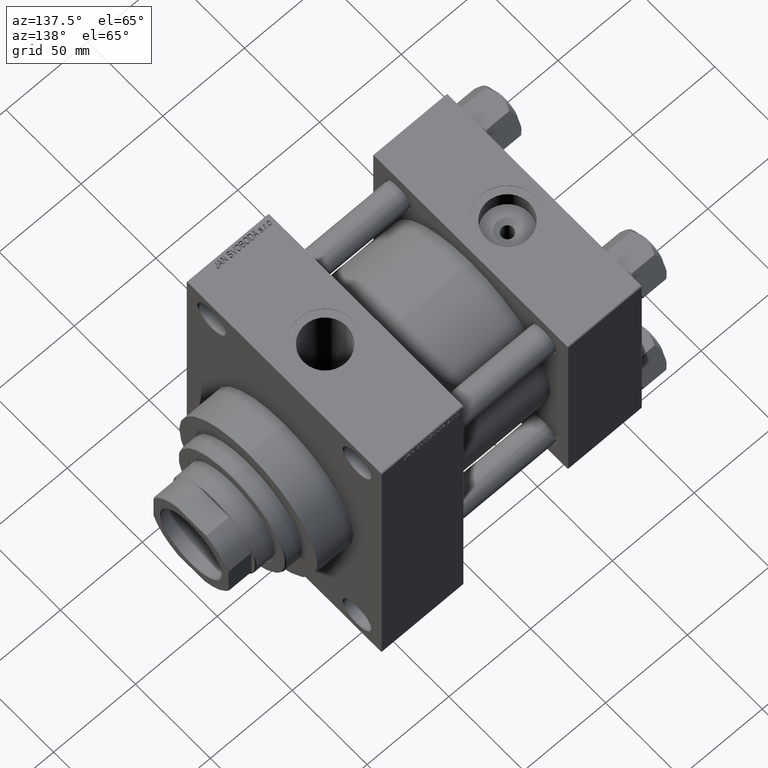
[diagram: clean part render]
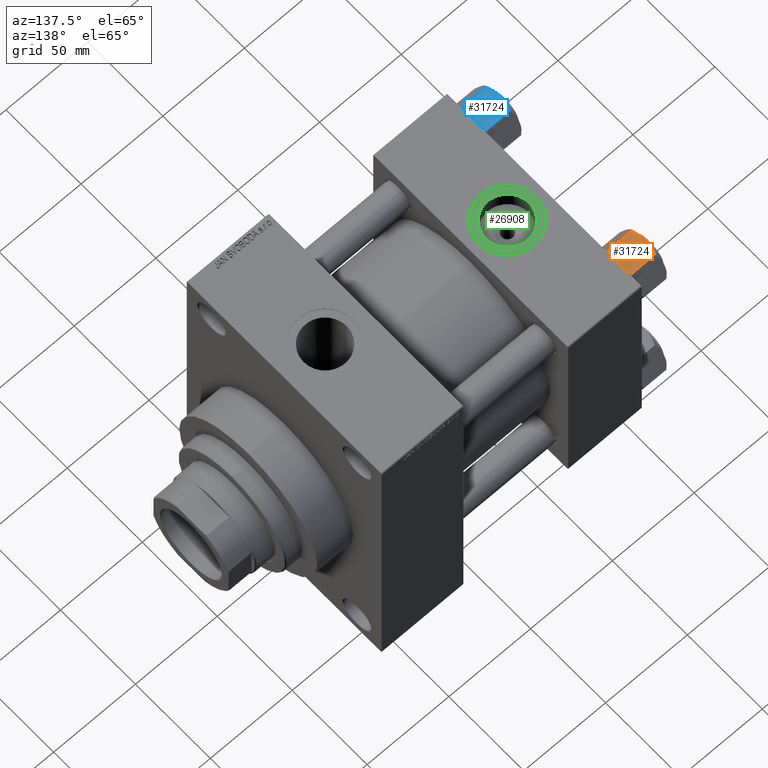
[diagram: same view with three faces highlighted in distinct colors, each labeled with its STEP entity id]
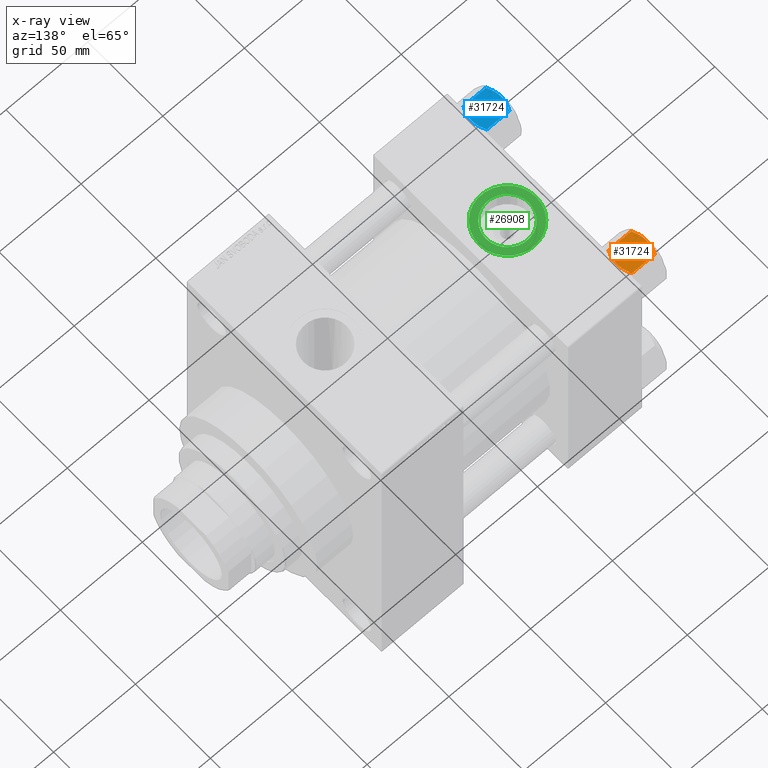
[diagram: x-ray of the same camera — body ghosted, the three highlighted faces saturated]
A machine part, auxiliary view with three faces highlighted in distinct colors.
The next image is the same camera in x-ray (body ghosted, the three faces saturated) — at least one of them is partly hidden behind the body in this view.
Their STEP definitions:

[orange] entity #31724 — the highlighted planar face has unit normal (0, -0, -1).
#64 = CARTESIAN_POINT ( 'NONE',  ( 6.427364677720476926, -13.52731680711293549, -16.56149306284486755 ) ) ;
#873 = VERTEX_POINT ( 'NONE', #10296 ) ;
#932 = CARTESIAN_POINT ( 'NONE',  ( 1.333889873825135686, -13.52731680711293549, -0.06156641003439144999 ) ) ;
#1480 = CARTESIAN_POINT ( 'NONE',  ( -0.6693083573771178019, -13.52731680711293727, -17.98750666918892449 ) ) ;
#1719 = CARTESIAN_POINT ( 'NONE',  ( -5.184073258379402027, -13.52731680711293905, -17.05185620934992130 ) ) ;
#1997 = CARTESIAN_POINT ( 'NONE',  ( 7.810000000000002274, -13.52731680711293372, -1.999999999999998224 ) ) ;
#4794 = CARTESIAN_POINT ( 'NONE',  ( 6.422751913021828685, -13.52731680711293549, -1.436509110925896948 ) ) ;
#4865 = CARTESIAN_POINT ( 'NONE',  ( -0.3330234424833808937, -13.52731680711293372, -18.00000000000000711 ) ) ;
#5498 = EDGE_CURVE ( 'NONE', #26891, #12865, #43399, .T. ) ;
#5553 = EDGE_CURVE ( 'NONE', #40498, #26159, #18893, .T. ) ;
#6248 = PLANE ( 'NONE',  #46167 ) ;
#6482 = CARTESIAN_POINT ( 'NONE',  ( 7.810000000000002274, -13.52731680711293372, -18.00000000000000000 ) ) ;
#6838 = CARTESIAN_POINT ( 'NONE',  ( 2.638177715023113379, -13.52731680711293549, -17.79984593233011481 ) ) ;
#7931 = CARTESIAN_POINT ( 'NONE',  ( 0.3330234424833860007, -13.52731680711293727, 1.736982230502816853E-15 ) ) ;
#8139 = CARTESIAN_POINT ( 'NONE',  ( -4.553769687922305742, -13.52731680711294082, -0.7327291995145158721 ) ) ;
#8412 = CARTESIAN_POINT ( 'NONE',  ( 2.644243758052992277, -13.52731680711293372, -0.2408281198023969893 ) ) ;
#8459 = ORIENTED_EDGE ( 'NONE', *, *, #39034, .F. ) ;
#9034 = DIRECTION ( 'NONE',  ( 1.000000000000000000, 2.221156819432531199E-16, -0.000000000000000000 ) ) ;
#9194 = CARTESIAN_POINT ( 'NONE',  ( 7.810000000000002274, -13.52731680711293372, -16.00000000000000000 ) ) ;
#9923 = VECTOR ( 'NONE', #39879, 1000.000000000000000 ) ;
#10296 = CARTESIAN_POINT ( 'NONE',  ( -7.622943475354647447, -13.52731680711293727, -2.000000000000000000 ) ) ;
#11239 = VERTEX_POINT ( 'NONE', #25371 ) ;
#11398 = CARTESIAN_POINT ( 'NONE',  ( 1.335584685993418619, -13.52731680711293372, -18.00000000000000355 ) ) ;
#12606 = B_SPLINE_CURVE_WITH_KNOTS ( 'NONE', 3,
 ( #15898, #7931, #19295, #932, #41508, #8412, #23393, #38136, #23156, #4794, #22673, #19533 ),
 .UNSPECIFIED., .F., .F.,
 ( 4, 2, 2, 2, 2, 4 ),
 ( 0.02774433486126546416, 0.02873404020403550266, 0.02972374554680554115, 0.03170315623234561814, 0.03368256691788569512, 0.03566197760342577211 ),
 .UNSPECIFIED. ) ;
#12703 = ORIENTED_EDGE ( 'NONE', *, *, #30930, .F. ) ;
#12865 = VERTEX_POINT ( 'NONE', #30211 ) ;
#12898 = LINE ( 'NONE', #39664, #23152 ) ;
#13080 = VERTEX_POINT ( 'NONE', #41024 ) ;
#13325 = ORIENTED_EDGE ( 'NONE', *, *, #24554, .T. ) ;
#13343 = B_SPLINE_CURVE_WITH_KNOTS ( 'NONE', 3,
 ( #41243, #15636, #19021, #18780, #8139, #37629, #34476, #34007 ),
 .UNSPECIFIED., .F., .F.,
 ( 4, 2, 2, 4 ),
 ( 0.01980594295952729095, 0.02179054093496183425, 0.02377513891039637756, 0.02774433486126546416 ),
 .UNSPECIFIED. ) ;
#15636 = CARTESIAN_POINT ( 'NONE',  ( -7.030888348548060662, -13.52731680711294082, -1.709337883550297699 ) ) ;
#15784 = EDGE_CURVE ( 'NONE', #11239, #25012, #47099, .T. ) ;
#15844 = CARTESIAN_POINT ( 'NONE',  ( 7.810000000000002274, -13.52731680711293372, -18.00000000000000000 ) ) ;
#15898 = CARTESIAN_POINT ( 'NONE',  ( 3.004629197474319246E-15, -13.52731680711293727, 0.000000000000000000 ) ) ;
#17785 = ORIENTED_EDGE ( 'NONE', *, *, #40246, .F. ) ;
#18780 = CARTESIAN_POINT ( 'NONE',  ( -5.189513245496330640, -13.52731680711293905, -0.9501108431732574466 ) ) ;
#18893 = LINE ( 'NONE', #19614, #28212 ) ;
#19021 = CARTESIAN_POINT ( 'NONE',  ( -6.427364677720470709, -13.52731680711293727, -1.438506937155139109 ) ) ;
#19163 = EDGE_CURVE ( 'NONE', #26159, #873, #27403, .T. ) ;
#19295 = CARTESIAN_POINT ( 'NONE',  ( 0.6693083573771232420, -13.52731680711293372, -0.01249333081107902900 ) ) ;
#19307 = VECTOR ( 'NONE', #9034, 1000.000000000000000 ) ;
#19459 = ORIENTED_EDGE ( 'NONE', *, *, #5498, .F. ) ;
#19533 = CARTESIAN_POINT ( 'NONE',  ( 7.622943475354652776, -13.52731680711293372, -2.000000000000000000 ) ) ;
#19603 = CARTESIAN_POINT ( 'NONE',  ( -7.030203932307581560, -13.52731680711293727, -16.29099812210860065 ) ) ;
#19614 = CARTESIAN_POINT ( 'NONE',  ( -7.809999999999999609, -13.52731680711293727, -18.00000000000000000 ) ) ;
#19752 = VECTOR ( 'NONE', #34452, 1000.000000000000000 ) ;
#19812 = ORIENTED_EDGE ( 'NONE', *, *, #31219, .F. ) ;
#20262 = DIRECTION ( 'NONE',  ( -1.000000000000000000, -2.221156819432531199E-16, 0.000000000000000000 ) ) ;
#20552 = CARTESIAN_POINT ( 'NONE',  ( 7.810000000000002274, -13.52731680711293372, -1.999999999999998224 ) ) ;
#21209 = DIRECTION ( 'NONE',  ( -2.221156819432531199E-16, 1.000000000000000000, 0.000000000000000000 ) ) ;
#21663 = ORIENTED_EDGE ( 'NONE', *, *, #21933, .F. ) ;
#21818 = CARTESIAN_POINT ( 'NONE',  ( 5.189513245496335969, -13.52731680711293194, -17.04988915682674033 ) ) ;
#21933 = EDGE_CURVE ( 'NONE', #36408, #11239, #12606, .T. ) ;
#22673 = CARTESIAN_POINT ( 'NONE',  ( 7.030203932307590442, -13.52731680711293727, -1.709001877891394017 ) ) ;
#22988 = CARTESIAN_POINT ( 'NONE',  ( -4.557734399832409800, -13.52731680711293905, -17.26585298258849122 ) ) ;
#22998 = DIRECTION ( 'NONE',  ( -0.000000000000000000, -0.000000000000000000, 1.000000000000000000 ) ) ;
#23152 = VECTOR ( 'NONE', #42373, 1000.000000000000000 ) ;
#23156 = CARTESIAN_POINT ( 'NONE',  ( 5.184073258379408244, -13.52731680711293372, -0.9481437906500832513 ) ) ;
#23393 = CARTESIAN_POINT ( 'NONE',  ( 3.287826776903156833, -13.52731680711293194, -0.3804584453753362960 ) ) ;
#23466 = CARTESIAN_POINT ( 'NONE',  ( -6.422751913021825132, -13.52731680711293905, -16.56349088907410305 ) ) ;
#23687 = ORIENTED_EDGE ( 'NONE', *, *, #19163, .F. ) ;
#23942 = DIRECTION ( 'NONE',  ( -1.000000000000000000, -2.221156819432531199E-16, 0.000000000000000000 ) ) ;
#24554 = EDGE_CURVE ( 'NONE', #27934, #25012, #41699, .T. ) ;
#24905 = ORIENTED_EDGE ( 'NONE', *, *, #15784, .F. ) ;
#25012 = VERTEX_POINT ( 'NONE', #1997 ) ;
#25213 = CARTESIAN_POINT ( 'NONE',  ( 4.553769687922309295, -13.52731680711293194, -17.26727080048548046 ) ) ;
#25371 = CARTESIAN_POINT ( 'NONE',  ( 7.622943475354652776, -13.52731680711293372, -2.000000000000000000 ) ) ;
#26159 = VERTEX_POINT ( 'NONE', #37070 ) ;
#26634 = CARTESIAN_POINT ( 'NONE',  ( 7.810000000000002274, -13.52731680711293372, -16.00000000000000000 ) ) ;
#26891 = VERTEX_POINT ( 'NONE', #32518 ) ;
#27176 = CARTESIAN_POINT ( 'NONE',  ( 7.810000000000002274, -13.52731680711293372, -1.999999999999998224 ) ) ;
#27403 = LINE ( 'NONE', #27176, #19307 ) ;
#27934 = VERTEX_POINT ( 'NONE', #26634 ) ;
#28212 = VECTOR ( 'NONE', #22998, 1000.000000000000000 ) ;
#28836 = CARTESIAN_POINT ( 'NONE',  ( 7.622943475354652776, -13.52731680711293372, -16.00000000000000000 ) ) ;
#30211 = CARTESIAN_POINT ( 'NONE',  ( 3.004629197474319246E-15, -13.52731680711293727, -18.00000000000000000 ) ) ;
#30725 = B_SPLINE_CURVE_WITH_KNOTS ( 'NONE', 3,
 ( #41824, #4865, #1480, #41585, #37732, #37973, #45430, #22988, #1719, #23466, #19603, #30968 ),
 .UNSPECIFIED., .F., .F.,
 ( 4, 2, 2, 2, 2, 4 ),
 ( 0.02774433486126545376, 0.02873404020403549225, 0.02972374554680553074, 0.03170315623234560426, 0.03368256691788568125, 0.03566197760342575823 ),
 .UNSPECIFIED. ) ;
#30930 = EDGE_CURVE ( 'NONE', #13080, #40498, #42286, .T. ) ;
#30968 = CARTESIAN_POINT ( 'NONE',  ( -7.622943475354647447, -13.52731680711293727, -16.00000000000000000 ) ) ;
#31219 = EDGE_CURVE ( 'NONE', #12865, #13080, #30725, .T. ) ;
#31724 = ADVANCED_FACE ( 'NONE', ( #39347 ), #6248, .F. ) ;
#32518 = CARTESIAN_POINT ( 'NONE',  ( 7.622943475354652776, -13.52731680711293372, -16.00000000000000000 ) ) ;
#34007 = CARTESIAN_POINT ( 'NONE',  ( 3.004629197474319246E-15, -13.52731680711293727, 0.000000000000000000 ) ) ;
#34452 = DIRECTION ( 'NONE',  ( -0.000000000000000000, -0.000000000000000000, 1.000000000000000000 ) ) ;
#34476 = CARTESIAN_POINT ( 'NONE',  ( -1.335584685993413956, -13.52731680711294082, 1.666960840196463265E-15 ) ) ;
#36408 = VERTEX_POINT ( 'NONE', #45493 ) ;
#37070 = CARTESIAN_POINT ( 'NONE',  ( -7.809999999999999609, -13.52731680711293727, -1.999999999999998224 ) ) ;
#37629 = CARTESIAN_POINT ( 'NONE',  ( -2.638177715023105385, -13.52731680711294082, -0.2001540676698838062 ) ) ;
#37732 = CARTESIAN_POINT ( 'NONE',  ( -1.663410456966171180, -13.52731680711293549, -17.90195050864300796 ) ) ;
#37973 = CARTESIAN_POINT ( 'NONE',  ( -2.644243758052987836, -13.52731680711293549, -17.75917188019760218 ) ) ;
#38136 = CARTESIAN_POINT ( 'NONE',  ( 4.557734399832416905, -13.52731680711293016, -0.7341470174115138914 ) ) ;
#38441 = VECTOR ( 'NONE', #23942, 1000.000000000000000 ) ;
#38801 = ORIENTED_EDGE ( 'NONE', *, *, #5553, .F. ) ;
#39034 = EDGE_CURVE ( 'NONE', #27934, #26891, #12898, .T. ) ;
#39347 = FACE_OUTER_BOUND ( 'NONE', #39737, .T. ) ;
#39664 = CARTESIAN_POINT ( 'NONE',  ( 7.810000000000002274, -13.52731680711293372, -16.00000000000000000 ) ) ;
#39737 = EDGE_LOOP ( 'NONE', ( #8459, #13325, #24905, #21663, #17785, #23687, #38801, #12703, #19812, #19459 ) ) ;
#39879 = DIRECTION ( 'NONE',  ( 1.000000000000000000, 2.221156819432531199E-16, -0.000000000000000000 ) ) ;
#39945 = CARTESIAN_POINT ( 'NONE',  ( 3.004629197474319246E-15, -13.52731680711293727, -18.00000000000000000 ) ) ;
#40246 = EDGE_CURVE ( 'NONE', #873, #36408, #13343, .T. ) ;
#40498 = VERTEX_POINT ( 'NONE', #43841 ) ;
#41024 = CARTESIAN_POINT ( 'NONE',  ( -7.622943475354647447, -13.52731680711293727, -16.00000000000000000 ) ) ;
#41243 = CARTESIAN_POINT ( 'NONE',  ( -7.622943475354647447, -13.52731680711293727, -2.000000000000000000 ) ) ;
#41508 = CARTESIAN_POINT ( 'NONE',  ( 1.663410456966175843, -13.52731680711293372, -0.09804949135698878826 ) ) ;
#41585 = CARTESIAN_POINT ( 'NONE',  ( -1.333889873825130579, -13.52731680711293549, -17.93843358996560866 ) ) ;
#41699 = LINE ( 'NONE', #15844, #19752 ) ;
#41824 = CARTESIAN_POINT ( 'NONE',  ( 3.004629197474319246E-15, -13.52731680711293727, -18.00000000000000000 ) ) ;
#42286 = LINE ( 'NONE', #9194, #38441 ) ;
#42373 = DIRECTION ( 'NONE',  ( -1.000000000000000000, -2.221156819432531199E-16, 0.000000000000000000 ) ) ;
#43399 = B_SPLINE_CURVE_WITH_KNOTS ( 'NONE', 3,
 ( #28836, #44488, #64, #21818, #25213, #6838, #11398, #39945 ),
 .UNSPECIFIED., .F., .F.,
 ( 4, 2, 2, 4 ),
 ( 0.01980594295952729095, 0.02179054093496183078, 0.02377513891039637062, 0.02774433486126545376 ),
 .UNSPECIFIED. ) ;
#43841 = CARTESIAN_POINT ( 'NONE',  ( -7.809999999999999609, -13.52731680711293727, -16.00000000000000000 ) ) ;
#44488 = CARTESIAN_POINT ( 'NONE',  ( 7.030888348548065103, -13.52731680711293194, -16.29066211644969897 ) ) ;
#45430 = CARTESIAN_POINT ( 'NONE',  ( -3.287826776903149728, -13.52731680711293727, -17.61954155462466076 ) ) ;
#45493 = CARTESIAN_POINT ( 'NONE',  ( 3.004629197474319246E-15, -13.52731680711293727, 0.000000000000000000 ) ) ;
#46167 = AXIS2_PLACEMENT_3D ( 'NONE', #6482, #21209, #20262 ) ;
#47099 = LINE ( 'NONE', #20552, #9923 ) ;

[blue] entity #31724 — the highlighted planar face has unit normal (0, -0, -1).
#64 = CARTESIAN_POINT ( 'NONE',  ( 6.427364677720476926, -13.52731680711293549, -16.56149306284486755 ) ) ;
#873 = VERTEX_POINT ( 'NONE', #10296 ) ;
#932 = CARTESIAN_POINT ( 'NONE',  ( 1.333889873825135686, -13.52731680711293549, -0.06156641003439144999 ) ) ;
#1480 = CARTESIAN_POINT ( 'NONE',  ( -0.6693083573771178019, -13.52731680711293727, -17.98750666918892449 ) ) ;
#1719 = CARTESIAN_POINT ( 'NONE',  ( -5.184073258379402027, -13.52731680711293905, -17.05185620934992130 ) ) ;
#1997 = CARTESIAN_POINT ( 'NONE',  ( 7.810000000000002274, -13.52731680711293372, -1.999999999999998224 ) ) ;
#4794 = CARTESIAN_POINT ( 'NONE',  ( 6.422751913021828685, -13.52731680711293549, -1.436509110925896948 ) ) ;
#4865 = CARTESIAN_POINT ( 'NONE',  ( -0.3330234424833808937, -13.52731680711293372, -18.00000000000000711 ) ) ;
#5498 = EDGE_CURVE ( 'NONE', #26891, #12865, #43399, .T. ) ;
#5553 = EDGE_CURVE ( 'NONE', #40498, #26159, #18893, .T. ) ;
#6248 = PLANE ( 'NONE',  #46167 ) ;
#6482 = CARTESIAN_POINT ( 'NONE',  ( 7.810000000000002274, -13.52731680711293372, -18.00000000000000000 ) ) ;
#6838 = CARTESIAN_POINT ( 'NONE',  ( 2.638177715023113379, -13.52731680711293549, -17.79984593233011481 ) ) ;
#7931 = CARTESIAN_POINT ( 'NONE',  ( 0.3330234424833860007, -13.52731680711293727, 1.736982230502816853E-15 ) ) ;
#8139 = CARTESIAN_POINT ( 'NONE',  ( -4.553769687922305742, -13.52731680711294082, -0.7327291995145158721 ) ) ;
#8412 = CARTESIAN_POINT ( 'NONE',  ( 2.644243758052992277, -13.52731680711293372, -0.2408281198023969893 ) ) ;
#8459 = ORIENTED_EDGE ( 'NONE', *, *, #39034, .F. ) ;
#9034 = DIRECTION ( 'NONE',  ( 1.000000000000000000, 2.221156819432531199E-16, -0.000000000000000000 ) ) ;
#9194 = CARTESIAN_POINT ( 'NONE',  ( 7.810000000000002274, -13.52731680711293372, -16.00000000000000000 ) ) ;
#9923 = VECTOR ( 'NONE', #39879, 1000.000000000000000 ) ;
#10296 = CARTESIAN_POINT ( 'NONE',  ( -7.622943475354647447, -13.52731680711293727, -2.000000000000000000 ) ) ;
#11239 = VERTEX_POINT ( 'NONE', #25371 ) ;
#11398 = CARTESIAN_POINT ( 'NONE',  ( 1.335584685993418619, -13.52731680711293372, -18.00000000000000355 ) ) ;
#12606 = B_SPLINE_CURVE_WITH_KNOTS ( 'NONE', 3,
 ( #15898, #7931, #19295, #932, #41508, #8412, #23393, #38136, #23156, #4794, #22673, #19533 ),
 .UNSPECIFIED., .F., .F.,
 ( 4, 2, 2, 2, 2, 4 ),
 ( 0.02774433486126546416, 0.02873404020403550266, 0.02972374554680554115, 0.03170315623234561814, 0.03368256691788569512, 0.03566197760342577211 ),
 .UNSPECIFIED. ) ;
#12703 = ORIENTED_EDGE ( 'NONE', *, *, #30930, .F. ) ;
#12865 = VERTEX_POINT ( 'NONE', #30211 ) ;
#12898 = LINE ( 'NONE', #39664, #23152 ) ;
#13080 = VERTEX_POINT ( 'NONE', #41024 ) ;
#13325 = ORIENTED_EDGE ( 'NONE', *, *, #24554, .T. ) ;
#13343 = B_SPLINE_CURVE_WITH_KNOTS ( 'NONE', 3,
 ( #41243, #15636, #19021, #18780, #8139, #37629, #34476, #34007 ),
 .UNSPECIFIED., .F., .F.,
 ( 4, 2, 2, 4 ),
 ( 0.01980594295952729095, 0.02179054093496183425, 0.02377513891039637756, 0.02774433486126546416 ),
 .UNSPECIFIED. ) ;
#15636 = CARTESIAN_POINT ( 'NONE',  ( -7.030888348548060662, -13.52731680711294082, -1.709337883550297699 ) ) ;
#15784 = EDGE_CURVE ( 'NONE', #11239, #25012, #47099, .T. ) ;
#15844 = CARTESIAN_POINT ( 'NONE',  ( 7.810000000000002274, -13.52731680711293372, -18.00000000000000000 ) ) ;
#15898 = CARTESIAN_POINT ( 'NONE',  ( 3.004629197474319246E-15, -13.52731680711293727, 0.000000000000000000 ) ) ;
#17785 = ORIENTED_EDGE ( 'NONE', *, *, #40246, .F. ) ;
#18780 = CARTESIAN_POINT ( 'NONE',  ( -5.189513245496330640, -13.52731680711293905, -0.9501108431732574466 ) ) ;
#18893 = LINE ( 'NONE', #19614, #28212 ) ;
#19021 = CARTESIAN_POINT ( 'NONE',  ( -6.427364677720470709, -13.52731680711293727, -1.438506937155139109 ) ) ;
#19163 = EDGE_CURVE ( 'NONE', #26159, #873, #27403, .T. ) ;
#19295 = CARTESIAN_POINT ( 'NONE',  ( 0.6693083573771232420, -13.52731680711293372, -0.01249333081107902900 ) ) ;
#19307 = VECTOR ( 'NONE', #9034, 1000.000000000000000 ) ;
#19459 = ORIENTED_EDGE ( 'NONE', *, *, #5498, .F. ) ;
#19533 = CARTESIAN_POINT ( 'NONE',  ( 7.622943475354652776, -13.52731680711293372, -2.000000000000000000 ) ) ;
#19603 = CARTESIAN_POINT ( 'NONE',  ( -7.030203932307581560, -13.52731680711293727, -16.29099812210860065 ) ) ;
#19614 = CARTESIAN_POINT ( 'NONE',  ( -7.809999999999999609, -13.52731680711293727, -18.00000000000000000 ) ) ;
#19752 = VECTOR ( 'NONE', #34452, 1000.000000000000000 ) ;
#19812 = ORIENTED_EDGE ( 'NONE', *, *, #31219, .F. ) ;
#20262 = DIRECTION ( 'NONE',  ( -1.000000000000000000, -2.221156819432531199E-16, 0.000000000000000000 ) ) ;
#20552 = CARTESIAN_POINT ( 'NONE',  ( 7.810000000000002274, -13.52731680711293372, -1.999999999999998224 ) ) ;
#21209 = DIRECTION ( 'NONE',  ( -2.221156819432531199E-16, 1.000000000000000000, 0.000000000000000000 ) ) ;
#21663 = ORIENTED_EDGE ( 'NONE', *, *, #21933, .F. ) ;
#21818 = CARTESIAN_POINT ( 'NONE',  ( 5.189513245496335969, -13.52731680711293194, -17.04988915682674033 ) ) ;
#21933 = EDGE_CURVE ( 'NONE', #36408, #11239, #12606, .T. ) ;
#22673 = CARTESIAN_POINT ( 'NONE',  ( 7.030203932307590442, -13.52731680711293727, -1.709001877891394017 ) ) ;
#22988 = CARTESIAN_POINT ( 'NONE',  ( -4.557734399832409800, -13.52731680711293905, -17.26585298258849122 ) ) ;
#22998 = DIRECTION ( 'NONE',  ( -0.000000000000000000, -0.000000000000000000, 1.000000000000000000 ) ) ;
#23152 = VECTOR ( 'NONE', #42373, 1000.000000000000000 ) ;
#23156 = CARTESIAN_POINT ( 'NONE',  ( 5.184073258379408244, -13.52731680711293372, -0.9481437906500832513 ) ) ;
#23393 = CARTESIAN_POINT ( 'NONE',  ( 3.287826776903156833, -13.52731680711293194, -0.3804584453753362960 ) ) ;
#23466 = CARTESIAN_POINT ( 'NONE',  ( -6.422751913021825132, -13.52731680711293905, -16.56349088907410305 ) ) ;
#23687 = ORIENTED_EDGE ( 'NONE', *, *, #19163, .F. ) ;
#23942 = DIRECTION ( 'NONE',  ( -1.000000000000000000, -2.221156819432531199E-16, 0.000000000000000000 ) ) ;
#24554 = EDGE_CURVE ( 'NONE', #27934, #25012, #41699, .T. ) ;
#24905 = ORIENTED_EDGE ( 'NONE', *, *, #15784, .F. ) ;
#25012 = VERTEX_POINT ( 'NONE', #1997 ) ;
#25213 = CARTESIAN_POINT ( 'NONE',  ( 4.553769687922309295, -13.52731680711293194, -17.26727080048548046 ) ) ;
#25371 = CARTESIAN_POINT ( 'NONE',  ( 7.622943475354652776, -13.52731680711293372, -2.000000000000000000 ) ) ;
#26159 = VERTEX_POINT ( 'NONE', #37070 ) ;
#26634 = CARTESIAN_POINT ( 'NONE',  ( 7.810000000000002274, -13.52731680711293372, -16.00000000000000000 ) ) ;
#26891 = VERTEX_POINT ( 'NONE', #32518 ) ;
#27176 = CARTESIAN_POINT ( 'NONE',  ( 7.810000000000002274, -13.52731680711293372, -1.999999999999998224 ) ) ;
#27403 = LINE ( 'NONE', #27176, #19307 ) ;
#27934 = VERTEX_POINT ( 'NONE', #26634 ) ;
#28212 = VECTOR ( 'NONE', #22998, 1000.000000000000000 ) ;
#28836 = CARTESIAN_POINT ( 'NONE',  ( 7.622943475354652776, -13.52731680711293372, -16.00000000000000000 ) ) ;
#30211 = CARTESIAN_POINT ( 'NONE',  ( 3.004629197474319246E-15, -13.52731680711293727, -18.00000000000000000 ) ) ;
#30725 = B_SPLINE_CURVE_WITH_KNOTS ( 'NONE', 3,
 ( #41824, #4865, #1480, #41585, #37732, #37973, #45430, #22988, #1719, #23466, #19603, #30968 ),
 .UNSPECIFIED., .F., .F.,
 ( 4, 2, 2, 2, 2, 4 ),
 ( 0.02774433486126545376, 0.02873404020403549225, 0.02972374554680553074, 0.03170315623234560426, 0.03368256691788568125, 0.03566197760342575823 ),
 .UNSPECIFIED. ) ;
#30930 = EDGE_CURVE ( 'NONE', #13080, #40498, #42286, .T. ) ;
#30968 = CARTESIAN_POINT ( 'NONE',  ( -7.622943475354647447, -13.52731680711293727, -16.00000000000000000 ) ) ;
#31219 = EDGE_CURVE ( 'NONE', #12865, #13080, #30725, .T. ) ;
#31724 = ADVANCED_FACE ( 'NONE', ( #39347 ), #6248, .F. ) ;
#32518 = CARTESIAN_POINT ( 'NONE',  ( 7.622943475354652776, -13.52731680711293372, -16.00000000000000000 ) ) ;
#34007 = CARTESIAN_POINT ( 'NONE',  ( 3.004629197474319246E-15, -13.52731680711293727, 0.000000000000000000 ) ) ;
#34452 = DIRECTION ( 'NONE',  ( -0.000000000000000000, -0.000000000000000000, 1.000000000000000000 ) ) ;
#34476 = CARTESIAN_POINT ( 'NONE',  ( -1.335584685993413956, -13.52731680711294082, 1.666960840196463265E-15 ) ) ;
#36408 = VERTEX_POINT ( 'NONE', #45493 ) ;
#37070 = CARTESIAN_POINT ( 'NONE',  ( -7.809999999999999609, -13.52731680711293727, -1.999999999999998224 ) ) ;
#37629 = CARTESIAN_POINT ( 'NONE',  ( -2.638177715023105385, -13.52731680711294082, -0.2001540676698838062 ) ) ;
#37732 = CARTESIAN_POINT ( 'NONE',  ( -1.663410456966171180, -13.52731680711293549, -17.90195050864300796 ) ) ;
#37973 = CARTESIAN_POINT ( 'NONE',  ( -2.644243758052987836, -13.52731680711293549, -17.75917188019760218 ) ) ;
#38136 = CARTESIAN_POINT ( 'NONE',  ( 4.557734399832416905, -13.52731680711293016, -0.7341470174115138914 ) ) ;
#38441 = VECTOR ( 'NONE', #23942, 1000.000000000000000 ) ;
#38801 = ORIENTED_EDGE ( 'NONE', *, *, #5553, .F. ) ;
#39034 = EDGE_CURVE ( 'NONE', #27934, #26891, #12898, .T. ) ;
#39347 = FACE_OUTER_BOUND ( 'NONE', #39737, .T. ) ;
#39664 = CARTESIAN_POINT ( 'NONE',  ( 7.810000000000002274, -13.52731680711293372, -16.00000000000000000 ) ) ;
#39737 = EDGE_LOOP ( 'NONE', ( #8459, #13325, #24905, #21663, #17785, #23687, #38801, #12703, #19812, #19459 ) ) ;
#39879 = DIRECTION ( 'NONE',  ( 1.000000000000000000, 2.221156819432531199E-16, -0.000000000000000000 ) ) ;
#39945 = CARTESIAN_POINT ( 'NONE',  ( 3.004629197474319246E-15, -13.52731680711293727, -18.00000000000000000 ) ) ;
#40246 = EDGE_CURVE ( 'NONE', #873, #36408, #13343, .T. ) ;
#40498 = VERTEX_POINT ( 'NONE', #43841 ) ;
#41024 = CARTESIAN_POINT ( 'NONE',  ( -7.622943475354647447, -13.52731680711293727, -16.00000000000000000 ) ) ;
#41243 = CARTESIAN_POINT ( 'NONE',  ( -7.622943475354647447, -13.52731680711293727, -2.000000000000000000 ) ) ;
#41508 = CARTESIAN_POINT ( 'NONE',  ( 1.663410456966175843, -13.52731680711293372, -0.09804949135698878826 ) ) ;
#41585 = CARTESIAN_POINT ( 'NONE',  ( -1.333889873825130579, -13.52731680711293549, -17.93843358996560866 ) ) ;
#41699 = LINE ( 'NONE', #15844, #19752 ) ;
#41824 = CARTESIAN_POINT ( 'NONE',  ( 3.004629197474319246E-15, -13.52731680711293727, -18.00000000000000000 ) ) ;
#42286 = LINE ( 'NONE', #9194, #38441 ) ;
#42373 = DIRECTION ( 'NONE',  ( -1.000000000000000000, -2.221156819432531199E-16, 0.000000000000000000 ) ) ;
#43399 = B_SPLINE_CURVE_WITH_KNOTS ( 'NONE', 3,
 ( #28836, #44488, #64, #21818, #25213, #6838, #11398, #39945 ),
 .UNSPECIFIED., .F., .F.,
 ( 4, 2, 2, 4 ),
 ( 0.01980594295952729095, 0.02179054093496183078, 0.02377513891039637062, 0.02774433486126545376 ),
 .UNSPECIFIED. ) ;
#43841 = CARTESIAN_POINT ( 'NONE',  ( -7.809999999999999609, -13.52731680711293727, -16.00000000000000000 ) ) ;
#44488 = CARTESIAN_POINT ( 'NONE',  ( 7.030888348548065103, -13.52731680711293194, -16.29066211644969897 ) ) ;
#45430 = CARTESIAN_POINT ( 'NONE',  ( -3.287826776903149728, -13.52731680711293727, -17.61954155462466076 ) ) ;
#45493 = CARTESIAN_POINT ( 'NONE',  ( 3.004629197474319246E-15, -13.52731680711293727, 0.000000000000000000 ) ) ;
#46167 = AXIS2_PLACEMENT_3D ( 'NONE', #6482, #21209, #20262 ) ;
#47099 = LINE ( 'NONE', #20552, #9923 ) ;

[green] entity #26908 — the highlighted planar face has unit normal (0, 0, 1).
#599 = AXIS2_PLACEMENT_3D ( 'NONE', #14055, #10430, #43038 ) ;
#1231 = DIRECTION ( 'NONE',  ( 1.000000000000000000, 0.000000000000000000, 0.000000000000000000 ) ) ;
#1705 = DIRECTION ( 'NONE',  ( 0.000000000000000000, 0.000000000000000000, 1.000000000000000000 ) ) ;
#5958 = VERTEX_POINT ( 'NONE', #9874 ) ;
#6633 = EDGE_CURVE ( 'NONE', #10909, #5958, #29794, .T. ) ;
#6638 = AXIS2_PLACEMENT_3D ( 'NONE', #12930, #16792, #31785 ) ;
#7059 = CARTESIAN_POINT ( 'NONE',  ( 4.999999999999997335, -6.530485481376167224E-15, 64.79999999999999716 ) ) ;
#7479 = VERTEX_POINT ( 'NONE', #22571 ) ;
#8110 = AXIS2_PLACEMENT_3D ( 'NONE', #26246, #12212, #30345 ) ;
#9874 = CARTESIAN_POINT ( 'NONE',  ( 40.00000000000000000, -8.673617379884035472E-15, 64.79999999999999716 ) ) ;
#10430 = DIRECTION ( 'NONE',  ( 0.000000000000000000, 0.000000000000000000, 1.000000000000000000 ) ) ;
#10909 = VERTEX_POINT ( 'NONE', #7059 ) ;
#10990 = FACE_BOUND ( 'NONE', #17590, .T. ) ;
#11219 = DIRECTION ( 'NONE',  ( 0.000000000000000000, 0.000000000000000000, 1.000000000000000000 ) ) ;
#12212 = DIRECTION ( 'NONE',  ( 0.000000000000000000, 0.000000000000000000, 1.000000000000000000 ) ) ;
#12218 = ORIENTED_EDGE ( 'NONE', *, *, #23549, .F. ) ;
#12930 = CARTESIAN_POINT ( 'NONE',  ( 22.50000000000000000, -8.673617379884035472E-15, 64.79999999999999716 ) ) ;
#14055 = CARTESIAN_POINT ( 'NONE',  ( 22.50000000000000000, -8.673617379884035472E-15, 64.79999999999999716 ) ) ;
#16685 = AXIS2_PLACEMENT_3D ( 'NONE', #35046, #1705, #1231 ) ;
#16792 = DIRECTION ( 'NONE',  ( 0.000000000000000000, 0.000000000000000000, 1.000000000000000000 ) ) ;
#17590 = EDGE_LOOP ( 'NONE', ( #12218, #39963 ) ) ;
#18011 = DIRECTION ( 'NONE',  ( 1.000000000000000000, 0.000000000000000000, -0.000000000000000000 ) ) ;
#19713 = ORIENTED_EDGE ( 'NONE', *, *, #26019, .T. ) ;
#22571 = CARTESIAN_POINT ( 'NONE',  ( 35.71999999999999886, -8.673617379884035472E-15, 64.79999999999999716 ) ) ;
#23549 = EDGE_CURVE ( 'NONE', #7479, #30885, #26639, .T. ) ;
#24513 = CIRCLE ( 'NONE', #599, 13.22000000000000242 ) ;
#25740 = PLANE ( 'NONE',  #36781 ) ;
#26019 = EDGE_CURVE ( 'NONE', #5958, #10909, #33651, .T. ) ;
#26246 = CARTESIAN_POINT ( 'NONE',  ( 22.50000000000000000, -8.673617379884035472E-15, 64.79999999999999716 ) ) ;
#26639 = CIRCLE ( 'NONE', #8110, 13.22000000000000242 ) ;
#26908 = ADVANCED_FACE ( 'NONE', ( #10990, #33226 ), #25740, .T. ) ;
#29071 = EDGE_CURVE ( 'NONE', #30885, #7479, #24513, .T. ) ;
#29794 = CIRCLE ( 'NONE', #16685, 17.50000000000000000 ) ;
#30345 = DIRECTION ( 'NONE',  ( 1.000000000000000000, 0.000000000000000000, 0.000000000000000000 ) ) ;
#30885 = VERTEX_POINT ( 'NONE', #41818 ) ;
#31785 = DIRECTION ( 'NONE',  ( 1.000000000000000000, 0.000000000000000000, 0.000000000000000000 ) ) ;
#32796 = EDGE_LOOP ( 'NONE', ( #19713, #44103 ) ) ;
#33226 = FACE_OUTER_BOUND ( 'NONE', #32796, .T. ) ;
#33651 = CIRCLE ( 'NONE', #6638, 17.50000000000000000 ) ;
#35046 = CARTESIAN_POINT ( 'NONE',  ( 22.50000000000000000, -8.673617379884035472E-15, 64.79999999999999716 ) ) ;
#36781 = AXIS2_PLACEMENT_3D ( 'NONE', #47447, #11219, #18011 ) ;
#39963 = ORIENTED_EDGE ( 'NONE', *, *, #29071, .F. ) ;
#41818 = CARTESIAN_POINT ( 'NONE',  ( 9.279999999999994031, -7.054634311411234321E-15, 64.79999999999999716 ) ) ;
#43038 = DIRECTION ( 'NONE',  ( 1.000000000000000000, 0.000000000000000000, 0.000000000000000000 ) ) ;
#44103 = ORIENTED_EDGE ( 'NONE', *, *, #6633, .T. ) ;
#47447 = CARTESIAN_POINT ( 'NONE',  ( 22.50000000000000000, -8.673617379884035472E-15, 64.79999999999999716 ) ) ;